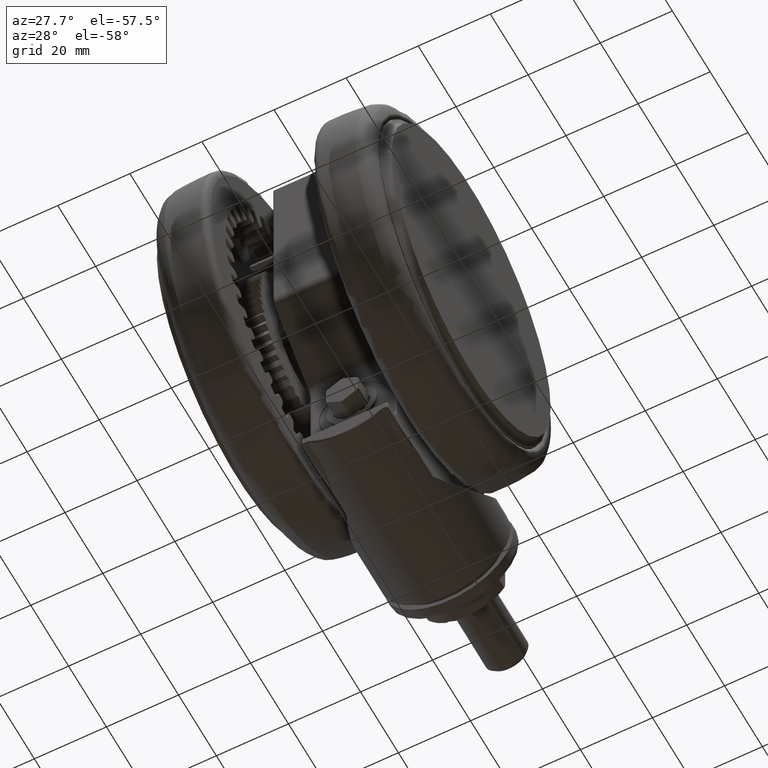
[diagram: clean part render]
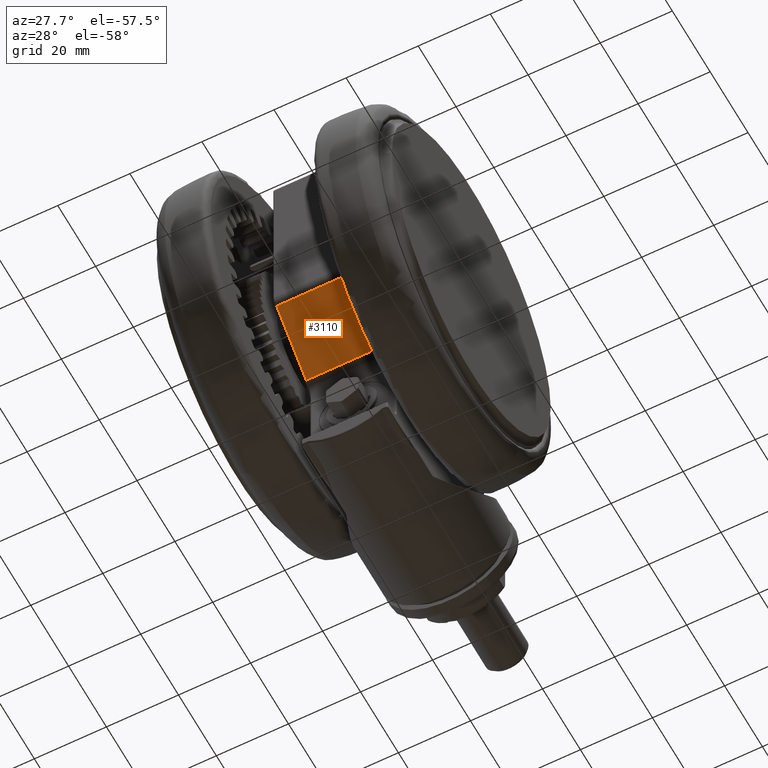
[diagram: same view with one face highlighted and labeled with its STEP entity id]
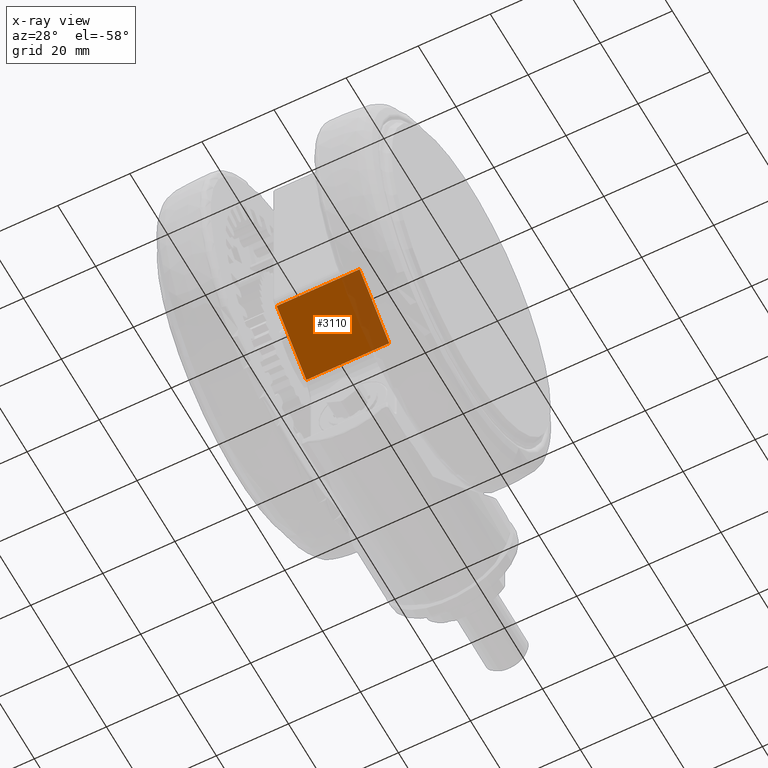
[diagram: x-ray of the same camera — body ghosted, the highlighted face saturated]
A machine part, auxiliary view. The second image highlights one B-rep face of the part: STEP entity #3110.
The next image is the same camera in x-ray: the body ghosted, the highlighted face saturated — about 22% of this face is hidden behind the body in this view.
In plain terms, the highlighted planar face has unit normal (0, 0.6078, 0.7941).
Its self-contained STEP definition (entity closure, byte-faithful):
#232 = CARTESIAN_POINT ( 'NONE',  ( -3.145696990041926700, -17.90025964025663500, -20.60000000000001200 ) ) ;
#325 = PLANE ( 'NONE',  #36697 ) ;
#3110 = ADVANCED_FACE ( 'NONE', ( #29199 ), #325, .F. ) ;
#3159 = EDGE_CURVE ( 'NONE', #36354, #38016, #58953, .T. ) ;
#6581 = ORIENTED_EDGE ( 'NONE', *, *, #59172, .T. ) ;
#9822 = CARTESIAN_POINT ( 'NONE',  ( -18.82361409973350100, -5.900574237234548200, -20.60000000000001200 ) ) ;
#10739 = CARTESIAN_POINT ( 'NONE',  ( -18.82361409973350100, -5.900574237234548200, -21.10000000000001200 ) ) ;
#11446 = VERTEX_POINT ( 'NONE', #54671 ) ;
#12232 = LINE ( 'NONE', #35353, #73670 ) ;
#12268 = CARTESIAN_POINT ( 'NONE',  ( -20.00023896682606400, -5.000000000000209600, -20.60000000000001200 ) ) ;
#16635 = LINE ( 'NONE', #10739, #28736 ) ;
#18478 = VECTOR ( 'NONE', #65546, 1000.000000000000000 ) ;
#23323 = DIRECTION ( 'NONE',  ( 0.7940964904073132300, -0.6077917109691346500, 0.0000000000000000000 ) ) ;
#24198 = DIRECTION ( 'NONE',  ( -0.7940964904073132300, 0.6077917109691345400, 0.0000000000000000000 ) ) ;
#28684 = DIRECTION ( 'NONE',  ( -0.7940964904073132300, 0.6077917109691346500, -0.0000000000000000000 ) ) ;
#28736 = VECTOR ( 'NONE', #28684, 999.9999999999998900 ) ;
#29199 = FACE_OUTER_BOUND ( 'NONE', #45222, .T. ) ;
#30046 = ORIENTED_EDGE ( 'NONE', *, *, #44498, .T. ) ;
#35353 = CARTESIAN_POINT ( 'NONE',  ( -20.00023896682606400, -5.000000000000209600, -44.10000000000001600 ) ) ;
#36354 = VERTEX_POINT ( 'NONE', #69365 ) ;
#36697 = AXIS2_PLACEMENT_3D ( 'NONE', #12268, #59858, #24198 ) ;
#38016 = VERTEX_POINT ( 'NONE', #55822 ) ;
#39487 = DIRECTION ( 'NONE',  ( 0.0000000000000000000, 0.0000000000000000000, -1.000000000000000000 ) ) ;
#44322 = ORIENTED_EDGE ( 'NONE', *, *, #75246, .T. ) ;
#44498 = EDGE_CURVE ( 'NONE', #38016, #56133, #12232, .T. ) ;
#45222 = EDGE_LOOP ( 'NONE', ( #44322, #6581, #58839, #30046 ) ) ;
#53055 = CARTESIAN_POINT ( 'NONE',  ( -3.145696990041926700, -17.90025964025663500, -44.10000000000001600 ) ) ;
#54671 = CARTESIAN_POINT ( 'NONE',  ( -3.145696990041926700, -17.90025964025663500, -21.10000000000001200 ) ) ;
#55822 = CARTESIAN_POINT ( 'NONE',  ( -18.82361409973350100, -5.900574237234548200, -44.10000000000001600 ) ) ;
#56133 = VERTEX_POINT ( 'NONE', #53055 ) ;
#57080 = VECTOR ( 'NONE', #39487, 1000.000000000000000 ) ;
#58839 = ORIENTED_EDGE ( 'NONE', *, *, #3159, .T. ) ;
#58953 = LINE ( 'NONE', #9822, #57080 ) ;
#59172 = EDGE_CURVE ( 'NONE', #11446, #36354, #16635, .T. ) ;
#59858 = DIRECTION ( 'NONE',  ( 0.6077917109691345400, 0.7940964904073132300, 0.0000000000000000000 ) ) ;
#65546 = DIRECTION ( 'NONE',  ( 0.0000000000000000000, 0.0000000000000000000, 1.000000000000000000 ) ) ;
#67873 = LINE ( 'NONE', #232, #18478 ) ;
#69365 = CARTESIAN_POINT ( 'NONE',  ( -18.82361409973350100, -5.900574237234548200, -21.10000000000001200 ) ) ;
#73670 = VECTOR ( 'NONE', #23323, 999.9999999999998900 ) ;
#75246 = EDGE_CURVE ( 'NONE', #56133, #11446, #67873, .T. ) ;